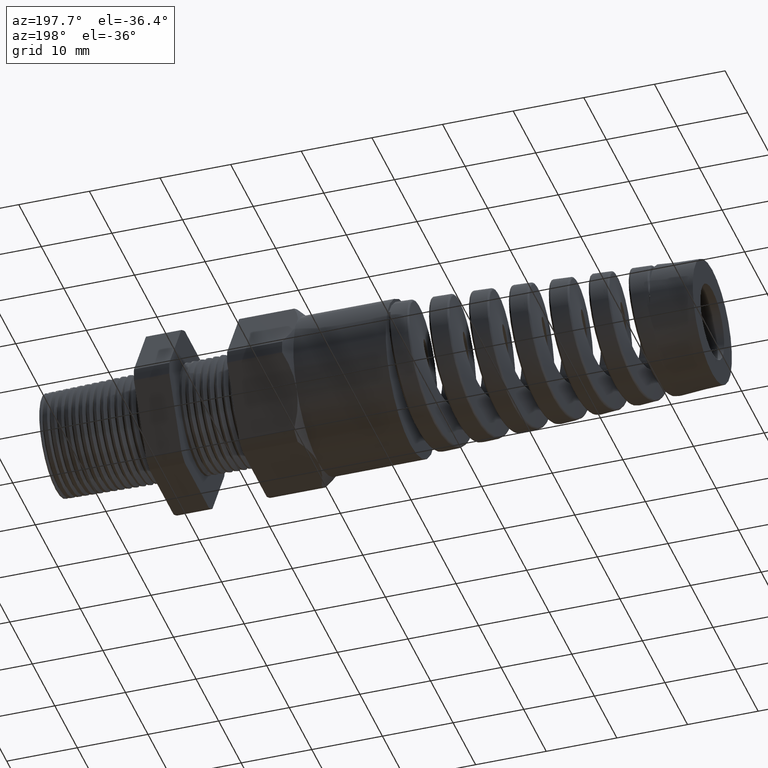
[diagram: clean part render]
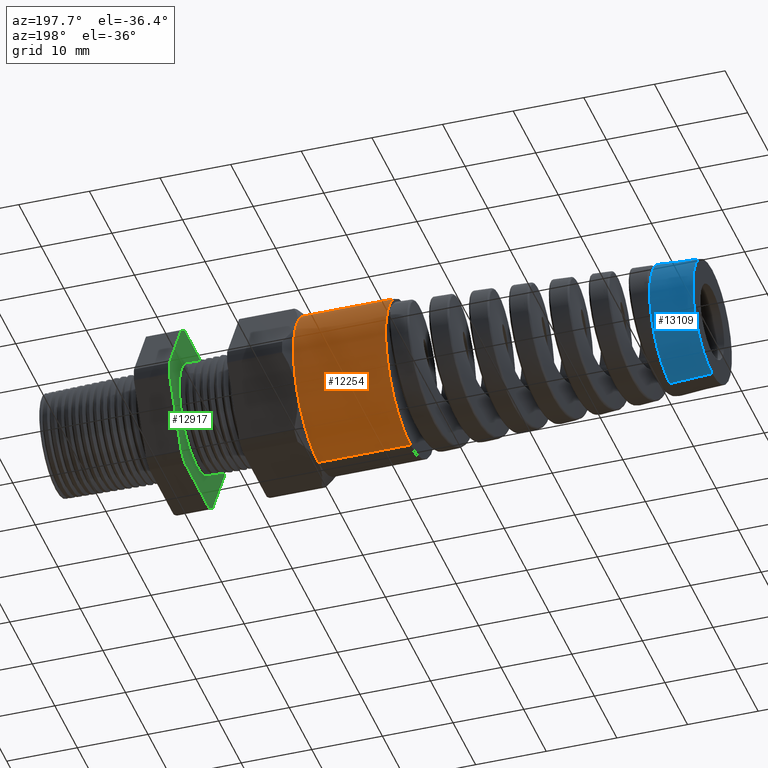
[diagram: same view with three faces highlighted in distinct colors, each labeled with its STEP entity id]
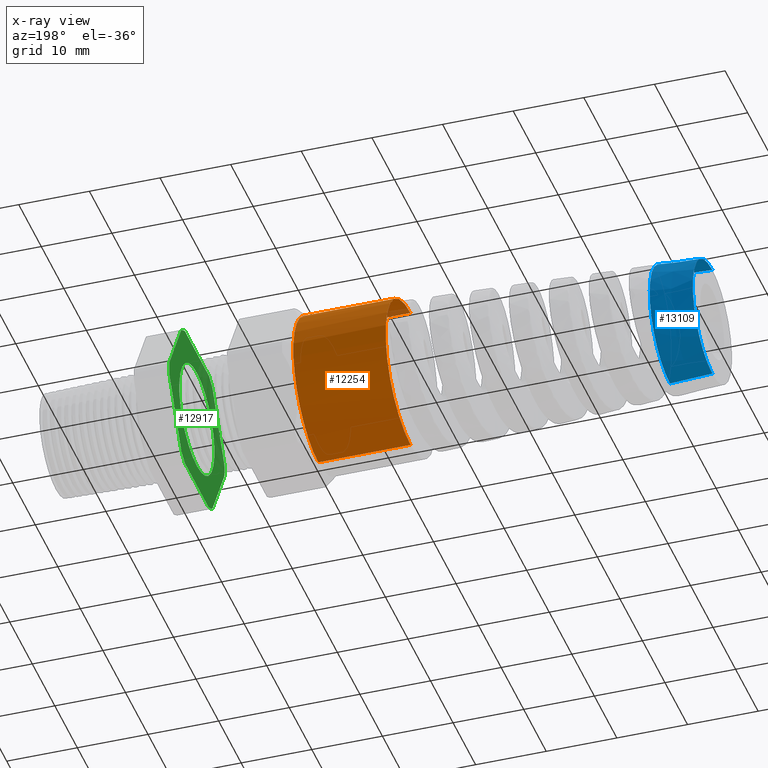
[diagram: x-ray of the same camera — body ghosted, the three highlighted faces saturated]
A machine part, auxiliary view with three faces highlighted in distinct colors.
The next image is the same camera in x-ray (body ghosted, the three faces saturated) — at least one of them is partly hidden behind the body in this view.
Their STEP definitions:

[orange] entity #12254 — the highlighted cylindrical surface (partial cylindrical patch) has radius 11.049 mm, axis along (1, -0, -0).
#6612 = DIRECTION ( 'NONE',  ( 0.0000000000000000000, 0.0000000000000000000, -1.000000000000000000 ) ) ;
#6613 = DIRECTION ( 'NONE',  ( 1.000000000000000000, -0.0000000000000000000, -0.0000000000000000000 ) ) ;
#6614 = CARTESIAN_POINT ( 'NONE',  ( 1.326736918405036800, 0.0000000000000000000, 0.0000000000000000000 ) ) ;
#6615 = AXIS2_PLACEMENT_3D ( 'NONE', #6614, #6613, #6612 ) ;
#6618 = CYLINDRICAL_SURFACE ( 'NONE', #6615, 0.4350000000000000000 ) ;
#6619 = FACE_OUTER_BOUND ( 'NONE', #12255, .T. ) ;
#6662 = CARTESIAN_POINT ( 'NONE',  ( -1.183700787401574600, 0.0000000000000000000, 0.4350000000000000000 ) ) ;
#6663 = DIRECTION ( 'NONE',  ( 1.000000000000000000, -0.0000000000000000000, -0.0000000000000000000 ) ) ;
#6664 = VECTOR ( 'NONE', #6663, 39.37007874015748100 ) ;
#6665 = CARTESIAN_POINT ( 'NONE',  ( 1.326736918405036800, 5.327213576290986400E-017, 0.4350000000000000000 ) ) ;
#6666 = LINE ( 'NONE', #6665, #6664 ) ;
#6667 = CARTESIAN_POINT ( 'NONE',  ( -1.697947509874504300, 0.0000000000000000000, -0.4350000000000000000 ) ) ;
#6668 = CARTESIAN_POINT ( 'NONE',  ( -1.697947509874504300, 5.327213576290986400E-017, 0.4350000000000000000 ) ) ;
#6669 = DIRECTION ( 'NONE',  ( 0.0000000000000000000, 0.0000000000000000000, 1.000000000000000000 ) ) ;
#6670 = DIRECTION ( 'NONE',  ( -1.000000000000000000, 0.0000000000000000000, 0.0000000000000000000 ) ) ;
#6671 = CARTESIAN_POINT ( 'NONE',  ( -1.697947509874504300, 0.0000000000000000000, 0.0000000000000000000 ) ) ;
#6672 = AXIS2_PLACEMENT_3D ( 'NONE', #6671, #6670, #6669 ) ;
#6673 = CIRCLE ( 'NONE', #6672, 0.4350000000000000000 ) ;
#6735 = CARTESIAN_POINT ( 'NONE',  ( -1.183700787401574600, 0.0000000000000000000, -0.4350000000000000000 ) ) ;
#6736 = DIRECTION ( 'NONE',  ( 0.0000000000000000000, 0.0000000000000000000, -1.000000000000000000 ) ) ;
#6737 = DIRECTION ( 'NONE',  ( 1.000000000000000000, -0.0000000000000000000, -0.0000000000000000000 ) ) ;
#6738 = CARTESIAN_POINT ( 'NONE',  ( -1.183700787401574600, 0.0000000000000000000, 0.0000000000000000000 ) ) ;
#6739 = AXIS2_PLACEMENT_3D ( 'NONE', #6738, #6737, #6736 ) ;
#6740 = CIRCLE ( 'NONE', #6739, 0.4350000000000000000 ) ;
#6741 = CARTESIAN_POINT ( 'NONE',  ( -1.183700787401574600, 0.3767210506462309000, -0.2175000000000000000 ) ) ;
#6742 = DIRECTION ( 'NONE',  ( 0.0000000000000000000, 0.0000000000000000000, -1.000000000000000000 ) ) ;
#6743 = DIRECTION ( 'NONE',  ( 1.000000000000000000, -0.0000000000000000000, -0.0000000000000000000 ) ) ;
#6744 = CARTESIAN_POINT ( 'NONE',  ( -1.183700787401574600, 0.0000000000000000000, 0.0000000000000000000 ) ) ;
#6745 = AXIS2_PLACEMENT_3D ( 'NONE', #6744, #6743, #6742 ) ;
#6746 = CIRCLE ( 'NONE', #6745, 0.4350000000000000000 ) ;
#6747 = CARTESIAN_POINT ( 'NONE',  ( -1.183700787401574600, 0.3767210506462308500, 0.2175000000000000000 ) ) ;
#6748 = DIRECTION ( 'NONE',  ( 0.0000000000000000000, 0.0000000000000000000, -1.000000000000000000 ) ) ;
#6749 = DIRECTION ( 'NONE',  ( 1.000000000000000000, -0.0000000000000000000, -0.0000000000000000000 ) ) ;
#6750 = CARTESIAN_POINT ( 'NONE',  ( -1.183700787401574600, 0.0000000000000000000, 0.0000000000000000000 ) ) ;
#6751 = AXIS2_PLACEMENT_3D ( 'NONE', #6750, #6749, #6748 ) ;
#6752 = CIRCLE ( 'NONE', #6751, 0.4350000000000000000 ) ;
#6792 = DIRECTION ( 'NONE',  ( 1.000000000000000000, -0.0000000000000000000, -0.0000000000000000000 ) ) ;
#6793 = VECTOR ( 'NONE', #6792, 39.37007874015748100 ) ;
#6794 = CARTESIAN_POINT ( 'NONE',  ( 1.326736918405036800, 0.0000000000000000000, -0.4350000000000000000 ) ) ;
#6795 = LINE ( 'NONE', #6794, #6793 ) ;
#12254 = ADVANCED_FACE ( 'NONE', ( #6619 ), #6618, .T. ) ;
#12255 = EDGE_LOOP ( 'NONE', ( #12256, #12260, #12315, #12318, #12321, #12324 ) ) ;
#12256 = ORIENTED_EDGE ( 'NONE', *, *, #12257, .F. ) ;
#12257 = EDGE_CURVE ( 'NONE', #12258, #12259, #6673, .T. ) ;
#12258 = VERTEX_POINT ( 'NONE', #6668 ) ;
#12259 = VERTEX_POINT ( 'NONE', #6667 ) ;
#12260 = ORIENTED_EDGE ( 'NONE', *, *, #12261, .T. ) ;
#12261 = EDGE_CURVE ( 'NONE', #12258, #12262, #6666, .T. ) ;
#12262 = VERTEX_POINT ( 'NONE', #6662 ) ;
#12315 = ORIENTED_EDGE ( 'NONE', *, *, #12316, .F. ) ;
#12316 = EDGE_CURVE ( 'NONE', #12317, #12262, #6752, .T. ) ;
#12317 = VERTEX_POINT ( 'NONE', #6747 ) ;
#12318 = ORIENTED_EDGE ( 'NONE', *, *, #12319, .F. ) ;
#12319 = EDGE_CURVE ( 'NONE', #12320, #12317, #6746, .T. ) ;
#12320 = VERTEX_POINT ( 'NONE', #6741 ) ;
#12321 = ORIENTED_EDGE ( 'NONE', *, *, #12322, .F. ) ;
#12322 = EDGE_CURVE ( 'NONE', #12323, #12320, #6740, .T. ) ;
#12323 = VERTEX_POINT ( 'NONE', #6735 ) ;
#12324 = ORIENTED_EDGE ( 'NONE', *, *, #12325, .F. ) ;
#12325 = EDGE_CURVE ( 'NONE', #12259, #12323, #6795, .T. ) ;

[blue] entity #13109 — the highlighted conical surface has half-angle 3 deg.
#3523 = VERTEX_POINT ( 'NONE', #14290 ) ;
#3527 = EDGE_CURVE ( 'NONE', #3523, #3594, #14285, .T. ) ;
#3594 = VERTEX_POINT ( 'NONE', #14309 ) ;
#6235 = CARTESIAN_POINT ( 'NONE',  ( -3.380000472440945400, -4.260207257271170800E-017, -0.3416824268726669200 ) ) ;
#6578 = DIRECTION ( 'NONE',  ( 0.9986295347545738300, -6.409306129323724800E-018, -0.05233595624294395300 ) ) ;
#6579 = VECTOR ( 'NONE', #6578, 39.37007874015748900 ) ;
#6580 = CARTESIAN_POINT ( 'NONE',  ( -3.143780000000000000, -4.336011610597231000E-017, -0.3540622172544876700 ) ) ;
#6581 = LINE ( 'NONE', #6580, #6579 ) ;
#6582 = CARTESIAN_POINT ( 'NONE',  ( -3.380000472440945400, 0.0000000000000000000, 0.3416824268726669200 ) ) ;
#6635 = DIRECTION ( 'NONE',  ( 0.9986295347545738300, 0.0000000000000000000, 0.05233595624294395300 ) ) ;
#6636 = VECTOR ( 'NONE', #6635, 39.37007874015748900 ) ;
#6637 = CARTESIAN_POINT ( 'NONE',  ( -3.143780000000000000, 0.0000000000000000000, 0.3540622172544876700 ) ) ;
#6638 = LINE ( 'NONE', #6637, #6636 ) ;
#6639 = CARTESIAN_POINT ( 'NONE',  ( -3.143780000000000000, 0.0000000000000000000, 0.3540622172544876700 ) ) ;
#8123 = CARTESIAN_POINT ( 'NONE',  ( -3.380000472440945400, 0.0000000000000000000, 0.0000000000000000000 ) ) ;
#8174 = DIRECTION ( 'NONE',  ( 0.0000000000000000000, 0.0000000000000000000, 1.000000000000000000 ) ) ;
#8175 = DIRECTION ( 'NONE',  ( -1.000000000000000000, 0.0000000000000000000, 0.0000000000000000000 ) ) ;
#8176 = AXIS2_PLACEMENT_3D ( 'NONE', #8123, #8175, #8174 ) ;
#8177 = CIRCLE ( 'NONE', #8176, 0.3416824268726669200 ) ;
#8435 = DIRECTION ( 'NONE',  ( 0.0000000000000000000, 0.0000000000000000000, 1.000000000000000000 ) ) ;
#8436 = DIRECTION ( 'NONE',  ( -1.000000000000000000, 0.0000000000000000000, 0.0000000000000000000 ) ) ;
#8437 = CARTESIAN_POINT ( 'NONE',  ( -3.143780000000000000, 0.0000000000000000000, 0.0000000000000000000 ) ) ;
#8438 = AXIS2_PLACEMENT_3D ( 'NONE', #8437, #8436, #8435 ) ;
#8439 = CIRCLE ( 'NONE', #8438, 0.3540622172544876700 ) ;
#8440 = DIRECTION ( 'NONE',  ( 0.0000000000000000000, 0.0000000000000000000, 1.000000000000000000 ) ) ;
#8455 = DIRECTION ( 'NONE',  ( 1.000000000000000000, -0.0000000000000000000, -0.0000000000000000000 ) ) ;
#8456 = CARTESIAN_POINT ( 'NONE',  ( -3.143780000000000000, 0.0000000000000000000, 0.0000000000000000000 ) ) ;
#8457 = AXIS2_PLACEMENT_3D ( 'NONE', #8456, #8455, #8440 ) ;
#8459 = CONICAL_SURFACE ( 'NONE', #8457, 0.3540622172544876700, 0.05235987755983000100 ) ;
#8460 = FACE_OUTER_BOUND ( 'NONE', #13051, .T. ) ;
#12182 = VERTEX_POINT ( 'NONE', #6235 ) ;
#12238 = VERTEX_POINT ( 'NONE', #6582 ) ;
#12240 = EDGE_CURVE ( 'NONE', #12182, #3523, #6581, .T. ) ;
#12244 = VERTEX_POINT ( 'NONE', #6639 ) ;
#12246 = EDGE_CURVE ( 'NONE', #12238, #12244, #6638, .T. ) ;
#13051 = EDGE_LOOP ( 'NONE', ( #13110, #13111, #13112, #13113, #13115 ) ) ;
#13063 = EDGE_CURVE ( 'NONE', #12238, #12182, #8177, .T. ) ;
#13109 = ADVANCED_FACE ( 'NONE', ( #8460 ), #8459, .T. ) ;
#13110 = ORIENTED_EDGE ( 'NONE', *, *, #12240, .F. ) ;
#13111 = ORIENTED_EDGE ( 'NONE', *, *, #13063, .F. ) ;
#13112 = ORIENTED_EDGE ( 'NONE', *, *, #12246, .T. ) ;
#13113 = ORIENTED_EDGE ( 'NONE', *, *, #13114, .T. ) ;
#13114 = EDGE_CURVE ( 'NONE', #12244, #3594, #8439, .T. ) ;
#13115 = ORIENTED_EDGE ( 'NONE', *, *, #3527, .F. ) ;
#14281 = DIRECTION ( 'NONE',  ( 0.0000000000000000000, 0.0000000000000000000, -1.000000000000000000 ) ) ;
#14282 = DIRECTION ( 'NONE',  ( 1.000000000000000000, -0.0000000000000000000, -0.0000000000000000000 ) ) ;
#14283 = CARTESIAN_POINT ( 'NONE',  ( -3.143780000000000000, 0.0000000000000000000, 0.0000000000000000000 ) ) ;
#14284 = AXIS2_PLACEMENT_3D ( 'NONE', #14283, #14282, #14281 ) ;
#14285 = CIRCLE ( 'NONE', #14284, 0.3540622172550578200 ) ;
#14290 = CARTESIAN_POINT ( 'NONE',  ( -3.143780000000000000, -4.336011610597231000E-017, -0.3540622172544876700 ) ) ;
#14309 = CARTESIAN_POINT ( 'NONE',  ( -3.143780000000000000, 0.3473251167516781500, -0.06874094093770406800 ) ) ;

[green] entity #12917 — the highlighted planar face has unit normal (-1, 0, 0).
#6687 = CARTESIAN_POINT ( 'NONE',  ( -0.5068503937007873300, 0.0000000000000000000, 0.3065545248230426300 ) ) ;
#6688 = CARTESIAN_POINT ( 'NONE',  ( -0.5068503937007873300, 3.756184420423994000E-017, -0.3065545248230426300 ) ) ;
#6689 = DIRECTION ( 'NONE',  ( 0.0000000000000000000, 0.0000000000000000000, -1.000000000000000000 ) ) ;
#6690 = DIRECTION ( 'NONE',  ( 1.000000000000000000, -0.0000000000000000000, -0.0000000000000000000 ) ) ;
#6691 = CARTESIAN_POINT ( 'NONE',  ( -0.5068503937007873300, 0.0000000000000000000, 0.0000000000000000000 ) ) ;
#6692 = AXIS2_PLACEMENT_3D ( 'NONE', #6691, #6690, #6689 ) ;
#6693 = CIRCLE ( 'NONE', #6692, 0.3065545248230426300 ) ;
#7865 = DIRECTION ( 'NONE',  ( 0.0000000000000000000, 0.4999999999999997200, 0.8660254037844388200 ) ) ;
#7866 = VECTOR ( 'NONE', #7865, 39.37007874015748100 ) ;
#7867 = CARTESIAN_POINT ( 'NONE',  ( -0.5068503937007874400, -0.1592210506462311000, 0.5942210506462305400 ) ) ;
#7868 = LINE ( 'NONE', #7867, #7866 ) ;
#7869 = CARTESIAN_POINT ( 'NONE',  ( -0.5068503937007874400, -0.4815054990391103900, 0.03600801154045356300 ) ) ;
#7870 = DIRECTION ( 'NONE',  ( 0.0000000000000000000, 0.0000000000000000000, 1.000000000000000000 ) ) ;
#7871 = DIRECTION ( 'NONE',  ( -1.000000000000000000, 0.0000000000000000000, 0.0000000000000000000 ) ) ;
#7872 = CARTESIAN_POINT ( 'NONE',  ( -0.5068503937007874400, 0.0000000000000000000, 0.0000000000000000000 ) ) ;
#7873 = AXIS2_PLACEMENT_3D ( 'NONE', #7872, #7871, #7870 ) ;
#7874 = CIRCLE ( 'NONE', #7873, 0.4828500000000001700 ) ;
#7875 = CARTESIAN_POINT ( 'NONE',  ( -0.5068503937007874400, -0.4815054990391102700, -0.03600801154045380600 ) ) ;
#7876 = DIRECTION ( 'NONE',  ( 0.0000000000000000000, -0.4999999999999998300, 0.8660254037844386000 ) ) ;
#7877 = VECTOR ( 'NONE', #7876, 39.37007874015748900 ) ;
#7878 = CARTESIAN_POINT ( 'NONE',  ( -0.5068503937007874400, -0.1592210506462309600, -0.5942210506462306500 ) ) ;
#7879 = LINE ( 'NONE', #7878, #7877 ) ;
#7897 = FACE_OUTER_BOUND ( 'NONE', #12922, .T. ) ;
#7898 = FACE_BOUND ( 'NONE', #12918, .T. ) ;
#7902 = CARTESIAN_POINT ( 'NONE',  ( -0.5068503937007874400, -0.2095688967857589300, -0.4350000000000000000 ) ) ;
#7903 = CARTESIAN_POINT ( 'NONE',  ( -0.5068503937007874400, 0.2095688967857590200, -0.4350000000000000000 ) ) ;
#7904 = DIRECTION ( 'NONE',  ( 0.0000000000000000000, 0.0000000000000000000, 1.000000000000000000 ) ) ;
#7905 = DIRECTION ( 'NONE',  ( -1.000000000000000000, 0.0000000000000000000, 0.0000000000000000000 ) ) ;
#7906 = CARTESIAN_POINT ( 'NONE',  ( -0.5068503937007874400, 0.0000000000000000000, 0.0000000000000000000 ) ) ;
#7907 = AXIS2_PLACEMENT_3D ( 'NONE', #7906, #7905, #7904 ) ;
#7908 = CIRCLE ( 'NONE', #7907, 0.4828500000000000600 ) ;
#7909 = CARTESIAN_POINT ( 'NONE',  ( -0.5068503937007874400, 0.2719366022533515900, -0.3989919884595460900 ) ) ;
#7910 = DIRECTION ( 'NONE',  ( 0.0000000000000000000, -0.4999999999999998300, -0.8660254037844386000 ) ) ;
#7911 = VECTOR ( 'NONE', #7910, 39.37007874015748900 ) ;
#7912 = CARTESIAN_POINT ( 'NONE',  ( -0.5068503937007874400, 0.5942210506462308800, 0.1592210506462307700 ) ) ;
#7913 = LINE ( 'NONE', #7912, #7911 ) ;
#7914 = CARTESIAN_POINT ( 'NONE',  ( -0.5068503937007874400, 0.4815054990391102700, -0.03600801154045386200 ) ) ;
#7915 = DIRECTION ( 'NONE',  ( 0.0000000000000000000, 0.0000000000000000000, 1.000000000000000000 ) ) ;
#7916 = DIRECTION ( 'NONE',  ( -1.000000000000000000, 0.0000000000000000000, 0.0000000000000000000 ) ) ;
#7917 = CARTESIAN_POINT ( 'NONE',  ( -0.5068503937007874400, 0.0000000000000000000, 0.0000000000000000000 ) ) ;
#7918 = AXIS2_PLACEMENT_3D ( 'NONE', #7917, #7916, #7915 ) ;
#7919 = CIRCLE ( 'NONE', #7918, 0.4828500000000000600 ) ;
#7920 = CARTESIAN_POINT ( 'NONE',  ( -0.5068503937007874400, 0.4815054990391102700, 0.03600801154045377200 ) ) ;
#7921 = CARTESIAN_POINT ( 'NONE',  ( -0.5068503937007874400, 0.2719366022533513100, 0.3989919884595462500 ) ) ;
#7922 = DIRECTION ( 'NONE',  ( 0.0000000000000000000, 0.4999999999999998900, -0.8660254037844386000 ) ) ;
#7923 = VECTOR ( 'NONE', #7922, 39.37007874015748900 ) ;
#7924 = CARTESIAN_POINT ( 'NONE',  ( -0.5068503937007874400, 0.5942210506462307600, -0.1592210506462308200 ) ) ;
#7925 = LINE ( 'NONE', #7924, #7923 ) ;
#7926 = CARTESIAN_POINT ( 'NONE',  ( -0.5068503937007874400, -0.2095688967857589100, 0.4350000000000000000 ) ) ;
#7927 = CARTESIAN_POINT ( 'NONE',  ( -0.5068503937007874400, -0.2719366022533518700, 0.3989919884595458700 ) ) ;
#7947 = DIRECTION ( 'NONE',  ( 0.0000000000000000000, 0.0000000000000000000, -1.000000000000000000 ) ) ;
#7948 = DIRECTION ( 'NONE',  ( 1.000000000000000000, -0.0000000000000000000, -0.0000000000000000000 ) ) ;
#7949 = AXIS2_PLACEMENT_3D ( 'NONE', #7955, #7948, #7947 ) ;
#7950 = CIRCLE ( 'NONE', #7949, 0.3065545248230426300 ) ;
#7951 = DIRECTION ( 'NONE',  ( 0.0000000000000000000, 0.0000000000000000000, 1.000000000000000000 ) ) ;
#7952 = DIRECTION ( 'NONE',  ( -1.000000000000000000, 0.0000000000000000000, 0.0000000000000000000 ) ) ;
#7953 = CARTESIAN_POINT ( 'NONE',  ( -0.5068503937007874400, 0.8700000000000000000, 0.0000000000000000000 ) ) ;
#7954 = AXIS2_PLACEMENT_3D ( 'NONE', #7953, #7952, #7951 ) ;
#7955 = CARTESIAN_POINT ( 'NONE',  ( -0.5068503937007873300, 0.0000000000000000000, 0.0000000000000000000 ) ) ;
#7956 = PLANE ( 'NONE',  #7954 ) ;
#7960 = LINE ( 'NONE', #8022, #8021 ) ;
#7972 = DIRECTION ( 'NONE',  ( 0.0000000000000000000, 0.0000000000000000000, 1.000000000000000000 ) ) ;
#7973 = DIRECTION ( 'NONE',  ( -1.000000000000000000, 0.0000000000000000000, 0.0000000000000000000 ) ) ;
#7974 = CARTESIAN_POINT ( 'NONE',  ( -0.5068503937007874400, 0.0000000000000000000, 0.0000000000000000000 ) ) ;
#7975 = AXIS2_PLACEMENT_3D ( 'NONE', #7974, #7973, #7972 ) ;
#7976 = CIRCLE ( 'NONE', #7975, 0.4828500000000000600 ) ;
#7977 = CARTESIAN_POINT ( 'NONE',  ( -0.5068503937007874400, 0.2095688967857588800, 0.4350000000000000000 ) ) ;
#7978 = DIRECTION ( 'NONE',  ( 0.0000000000000000000, 1.000000000000000000, -0.0000000000000000000 ) ) ;
#7979 = VECTOR ( 'NONE', #7978, 39.37007874015748100 ) ;
#7980 = CARTESIAN_POINT ( 'NONE',  ( -0.5068503937007874400, 0.8700000000000000000, 0.4350000000000000000 ) ) ;
#7981 = LINE ( 'NONE', #7980, #7979 ) ;
#7982 = DIRECTION ( 'NONE',  ( 0.0000000000000000000, 0.0000000000000000000, 1.000000000000000000 ) ) ;
#7983 = DIRECTION ( 'NONE',  ( -1.000000000000000000, 0.0000000000000000000, 0.0000000000000000000 ) ) ;
#7984 = CARTESIAN_POINT ( 'NONE',  ( -0.5068503937007874400, 0.0000000000000000000, 0.0000000000000000000 ) ) ;
#7985 = AXIS2_PLACEMENT_3D ( 'NONE', #7984, #7983, #7982 ) ;
#7986 = CIRCLE ( 'NONE', #7985, 0.4828500000000000600 ) ;
#8014 = CARTESIAN_POINT ( 'NONE',  ( -0.5068503937007874400, -0.2719366022533512600, -0.3989919884595462000 ) ) ;
#8015 = DIRECTION ( 'NONE',  ( 0.0000000000000000000, 0.0000000000000000000, 1.000000000000000000 ) ) ;
#8016 = DIRECTION ( 'NONE',  ( -1.000000000000000000, 0.0000000000000000000, 0.0000000000000000000 ) ) ;
#8017 = CARTESIAN_POINT ( 'NONE',  ( -0.5068503937007874400, 0.0000000000000000000, 0.0000000000000000000 ) ) ;
#8018 = AXIS2_PLACEMENT_3D ( 'NONE', #8017, #8016, #8015 ) ;
#8019 = CIRCLE ( 'NONE', #8018, 0.4828500000000000000 ) ;
#8020 = DIRECTION ( 'NONE',  ( 0.0000000000000000000, -1.000000000000000000, 0.0000000000000000000 ) ) ;
#8021 = VECTOR ( 'NONE', #8020, 39.37007874015748100 ) ;
#8022 = CARTESIAN_POINT ( 'NONE',  ( -0.5068503937007874400, 0.8700000000000000000, -0.4350000000000000000 ) ) ;
#12280 = EDGE_CURVE ( 'NONE', #12281, #12282, #6693, .T. ) ;
#12281 = VERTEX_POINT ( 'NONE', #6688 ) ;
#12282 = VERTEX_POINT ( 'NONE', #6687 ) ;
#12884 = ORIENTED_EDGE ( 'NONE', *, *, #12885, .T. ) ;
#12885 = EDGE_CURVE ( 'NONE', #12967, #12886, #7879, .T. ) ;
#12886 = VERTEX_POINT ( 'NONE', #7875 ) ;
#12887 = ORIENTED_EDGE ( 'NONE', *, *, #12888, .T. ) ;
#12888 = EDGE_CURVE ( 'NONE', #12886, #12889, #7874, .T. ) ;
#12889 = VERTEX_POINT ( 'NONE', #7869 ) ;
#12890 = ORIENTED_EDGE ( 'NONE', *, *, #12891, .T. ) ;
#12891 = EDGE_CURVE ( 'NONE', #12889, #12892, #7868, .T. ) ;
#12892 = VERTEX_POINT ( 'NONE', #7927 ) ;
#12893 = ORIENTED_EDGE ( 'NONE', *, *, #12951, .T. ) ;
#12894 = VERTEX_POINT ( 'NONE', #7926 ) ;
#12895 = ORIENTED_EDGE ( 'NONE', *, *, #12896, .T. ) ;
#12896 = EDGE_CURVE ( 'NONE', #12897, #12898, #7925, .T. ) ;
#12897 = VERTEX_POINT ( 'NONE', #7921 ) ;
#12898 = VERTEX_POINT ( 'NONE', #7920 ) ;
#12899 = ORIENTED_EDGE ( 'NONE', *, *, #12900, .T. ) ;
#12900 = EDGE_CURVE ( 'NONE', #12898, #12901, #7919, .T. ) ;
#12901 = VERTEX_POINT ( 'NONE', #7914 ) ;
#12902 = ORIENTED_EDGE ( 'NONE', *, *, #12903, .T. ) ;
#12903 = EDGE_CURVE ( 'NONE', #12901, #12904, #7913, .T. ) ;
#12904 = VERTEX_POINT ( 'NONE', #7909 ) ;
#12905 = ORIENTED_EDGE ( 'NONE', *, *, #12906, .T. ) ;
#12906 = EDGE_CURVE ( 'NONE', #12904, #12907, #7908, .T. ) ;
#12907 = VERTEX_POINT ( 'NONE', #7903 ) ;
#12908 = ORIENTED_EDGE ( 'NONE', *, *, #12964, .T. ) ;
#12909 = VERTEX_POINT ( 'NONE', #7902 ) ;
#12917 = ADVANCED_FACE ( 'NONE', ( #7898, #7897 ), #7956, .T. ) ;
#12918 = EDGE_LOOP ( 'NONE', ( #12919, #12921 ) ) ;
#12919 = ORIENTED_EDGE ( 'NONE', *, *, #12920, .T. ) ;
#12920 = EDGE_CURVE ( 'NONE', #12282, #12281, #7950, .T. ) ;
#12921 = ORIENTED_EDGE ( 'NONE', *, *, #12280, .T. ) ;
#12922 = EDGE_LOOP ( 'NONE', ( #12895, #12899, #12902, #12905, #12908, #12965, #12884, #12887, #12890, #12893, #12952, #12955 ) ) ;
#12951 = EDGE_CURVE ( 'NONE', #12892, #12894, #7986, .T. ) ;
#12952 = ORIENTED_EDGE ( 'NONE', *, *, #12953, .T. ) ;
#12953 = EDGE_CURVE ( 'NONE', #12894, #12954, #7981, .T. ) ;
#12954 = VERTEX_POINT ( 'NONE', #7977 ) ;
#12955 = ORIENTED_EDGE ( 'NONE', *, *, #12956, .T. ) ;
#12956 = EDGE_CURVE ( 'NONE', #12954, #12897, #7976, .T. ) ;
#12964 = EDGE_CURVE ( 'NONE', #12907, #12909, #7960, .T. ) ;
#12965 = ORIENTED_EDGE ( 'NONE', *, *, #12966, .T. ) ;
#12966 = EDGE_CURVE ( 'NONE', #12909, #12967, #8019, .T. ) ;
#12967 = VERTEX_POINT ( 'NONE', #8014 ) ;